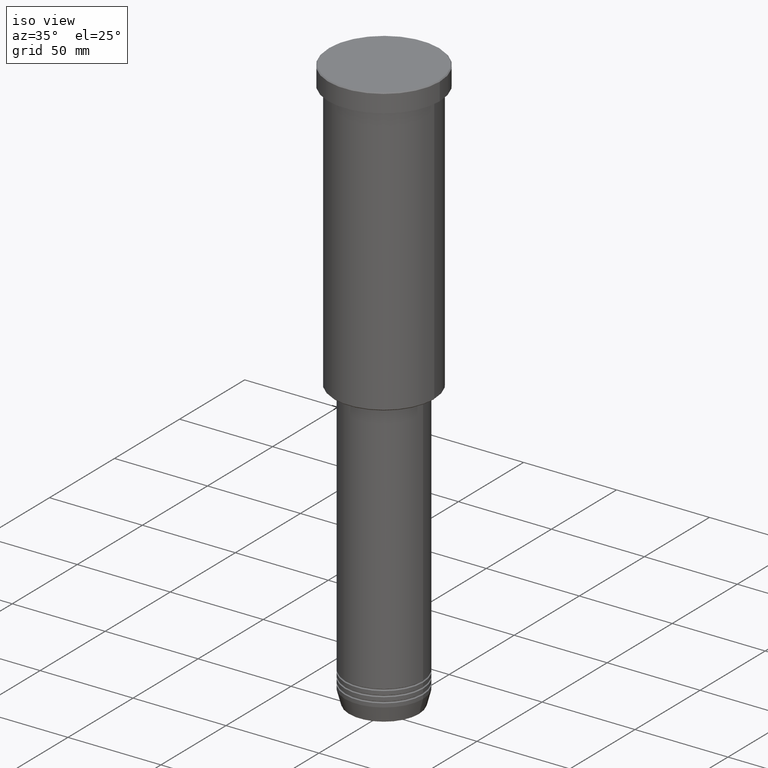
[diagram: clean part render]
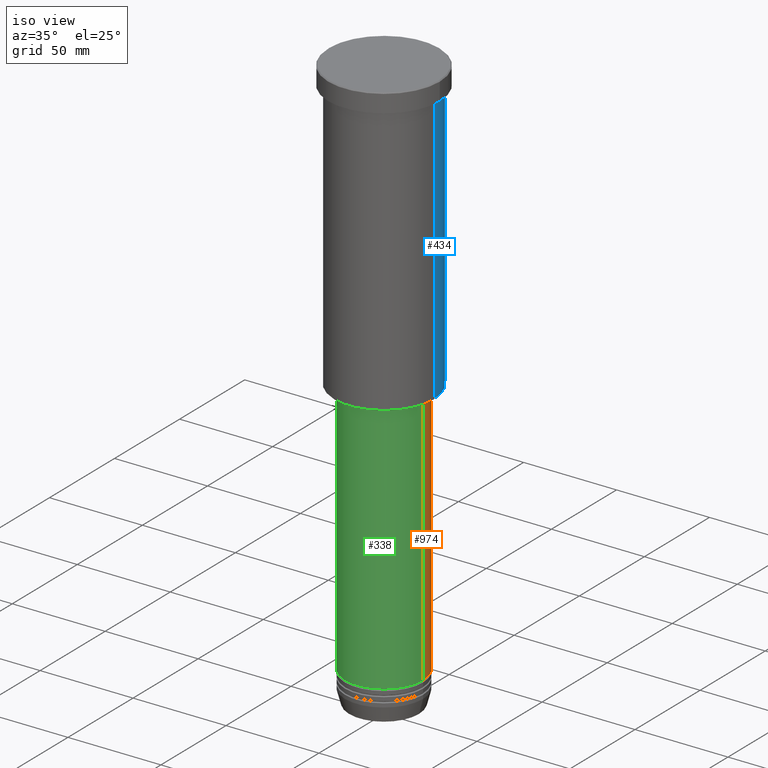
[diagram: same view with three faces highlighted in distinct colors, each labeled with its STEP entity id]
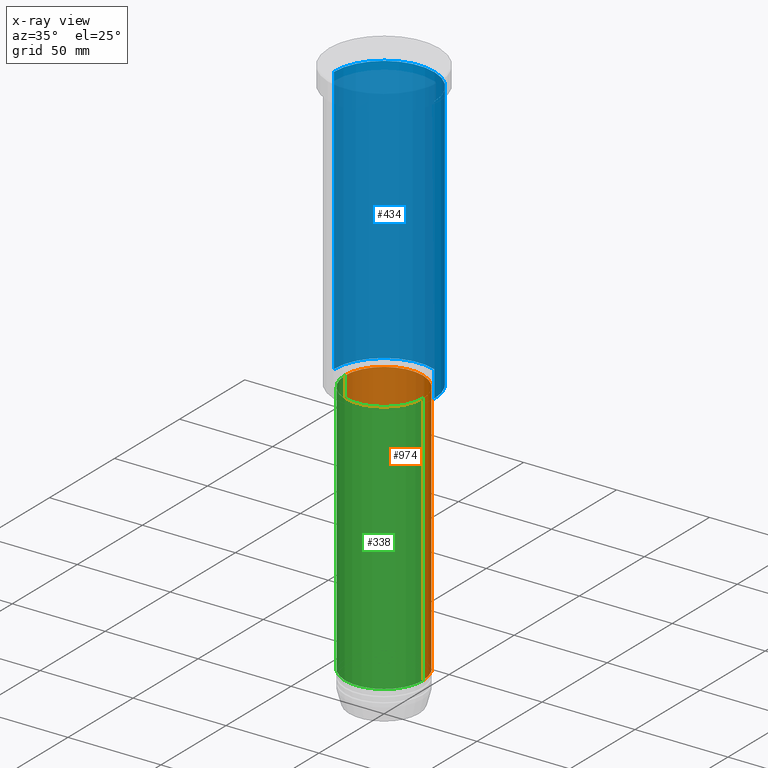
[diagram: x-ray of the same camera — body ghosted, the three highlighted faces saturated]
A machine part, iso view with three faces highlighted in distinct colors.
The next image is the same camera in x-ray (body ghosted, the three faces saturated) — at least one of them is partly hidden behind the body in this view.
Their STEP definitions:

[orange] entity #974 — the highlighted cylindrical surface (partial cylindrical patch) has radius 21 mm, axis along (-0, -0, 1).
#19 = VERTEX_POINT ( 'NONE', #55 ) ;
#34 = CYLINDRICAL_SURFACE ( 'NONE', #875, 21.00000000000000000 ) ;
#55 = CARTESIAN_POINT ( 'NONE',  ( 21.00000000000000000, 0.000000000000000000, -156.9999999999999147 ) ) ;
#90 = EDGE_LOOP ( 'NONE', ( #656, #624, #934, #271 ) ) ;
#97 = AXIS2_PLACEMENT_3D ( 'NONE', #742, #544, #457 ) ;
#106 = EDGE_CURVE ( 'NONE', #847, #19, #963, .T. ) ;
#120 = CARTESIAN_POINT ( 'NONE',  ( 0.000000000000000000, 0.000000000000000000, 0.000000000000000000 ) ) ;
#149 = DIRECTION ( 'NONE',  ( -0.000000000000000000, -0.000000000000000000, 1.000000000000000000 ) ) ;
#165 = CIRCLE ( 'NONE', #97, 21.00000000000000000 ) ;
#232 = CARTESIAN_POINT ( 'NONE',  ( -21.00000000000000000, 2.571758278209441661E-15, 0.000000000000000000 ) ) ;
#271 = ORIENTED_EDGE ( 'NONE', *, *, #106, .F. ) ;
#345 = AXIS2_PLACEMENT_3D ( 'NONE', #447, #804, #813 ) ;
#447 = CARTESIAN_POINT ( 'NONE',  ( 0.000000000000000000, 0.000000000000000000, -156.9999999999999147 ) ) ;
#457 = DIRECTION ( 'NONE',  ( 1.000000000000000000, 0.000000000000000000, 0.000000000000000000 ) ) ;
#463 = VECTOR ( 'NONE', #524, 1000.000000000000000 ) ;
#489 = VERTEX_POINT ( 'NONE', #1056 ) ;
#524 = DIRECTION ( 'NONE',  ( -0.000000000000000000, -0.000000000000000000, 1.000000000000000000 ) ) ;
#544 = DIRECTION ( 'NONE',  ( -0.000000000000000000, -0.000000000000000000, 1.000000000000000000 ) ) ;
#558 = EDGE_CURVE ( 'NONE', #1062, #489, #702, .T. ) ;
#588 = CIRCLE ( 'NONE', #345, 21.00000000000000000 ) ;
#624 = ORIENTED_EDGE ( 'NONE', *, *, #558, .T. ) ;
#651 = CARTESIAN_POINT ( 'NONE',  ( 21.00000000000000000, 0.000000000000000000, -294.0000000000000000 ) ) ;
#656 = ORIENTED_EDGE ( 'NONE', *, *, #880, .T. ) ;
#702 = LINE ( 'NONE', #232, #463 ) ;
#742 = CARTESIAN_POINT ( 'NONE',  ( 0.000000000000000000, 0.000000000000000000, -294.0000000000000000 ) ) ;
#804 = DIRECTION ( 'NONE',  ( -0.000000000000000000, -0.000000000000000000, 1.000000000000000000 ) ) ;
#813 = DIRECTION ( 'NONE',  ( 1.000000000000000000, 0.000000000000000000, 0.000000000000000000 ) ) ;
#822 = CARTESIAN_POINT ( 'NONE',  ( -21.00000000000000000, 2.571758278209441661E-15, -294.0000000000000000 ) ) ;
#847 = VERTEX_POINT ( 'NONE', #651 ) ;
#856 = FACE_OUTER_BOUND ( 'NONE', #90, .T. ) ;
#875 = AXIS2_PLACEMENT_3D ( 'NONE', #120, #1016, #1129 ) ;
#880 = EDGE_CURVE ( 'NONE', #847, #1062, #165, .T. ) ;
#934 = ORIENTED_EDGE ( 'NONE', *, *, #1063, .F. ) ;
#937 = VECTOR ( 'NONE', #149, 1000.000000000000000 ) ;
#963 = LINE ( 'NONE', #1168, #937 ) ;
#974 = ADVANCED_FACE ( 'NONE', ( #856 ), #34, .T. ) ;
#1016 = DIRECTION ( 'NONE',  ( -0.000000000000000000, -0.000000000000000000, 1.000000000000000000 ) ) ;
#1056 = CARTESIAN_POINT ( 'NONE',  ( -21.00000000000000000, 2.571758278209441661E-15, -156.9999999999999147 ) ) ;
#1062 = VERTEX_POINT ( 'NONE', #822 ) ;
#1063 = EDGE_CURVE ( 'NONE', #19, #489, #588, .T. ) ;
#1129 = DIRECTION ( 'NONE',  ( 1.000000000000000000, 0.000000000000000000, 0.000000000000000000 ) ) ;
#1168 = CARTESIAN_POINT ( 'NONE',  ( 21.00000000000000000, 0.000000000000000000, 0.000000000000000000 ) ) ;

[blue] entity #434 — the highlighted cylindrical surface (partial cylindrical patch) has radius 27 mm, axis along (-0, -0, 1).
#25 = AXIS2_PLACEMENT_3D ( 'NONE', #237, #898, #805 ) ;
#49 = LINE ( 'NONE', #690, #866 ) ;
#67 = EDGE_CURVE ( 'NONE', #727, #834, #89, .T. ) ;
#79 = ORIENTED_EDGE ( 'NONE', *, *, #789, .T. ) ;
#89 = CIRCLE ( 'NONE', #25, 27.00000000000000355 ) ;
#115 = VECTOR ( 'NONE', #671, 1000.000000000000000 ) ;
#139 = ORIENTED_EDGE ( 'NONE', *, *, #67, .F. ) ;
#217 = ORIENTED_EDGE ( 'NONE', *, *, #450, .F. ) ;
#237 = CARTESIAN_POINT ( 'NONE',  ( 0.000000000000000000, 0.000000000000000000, -10.99999999999999289 ) ) ;
#249 = DIRECTION ( 'NONE',  ( -1.000000000000000000, 0.000000000000000000, 0.000000000000000000 ) ) ;
#287 = AXIS2_PLACEMENT_3D ( 'NONE', #1157, #342, #249 ) ;
#315 = CARTESIAN_POINT ( 'NONE',  ( -27.00000000000000355, 3.306546357697854128E-15, -155.5000000000000000 ) ) ;
#326 = DIRECTION ( 'NONE',  ( -0.000000000000000000, -0.000000000000000000, 1.000000000000000000 ) ) ;
#335 = DIRECTION ( 'NONE',  ( 1.000000000000000000, 0.000000000000000000, 0.000000000000000000 ) ) ;
#342 = DIRECTION ( 'NONE',  ( -0.000000000000000000, -0.000000000000000000, 1.000000000000000000 ) ) ;
#361 = CARTESIAN_POINT ( 'NONE',  ( -27.00000000000000355, 3.306546357697854128E-15, -10.99999999999999289 ) ) ;
#395 = LINE ( 'NONE', #935, #115 ) ;
#410 = CARTESIAN_POINT ( 'NONE',  ( 0.000000000000000000, 0.000000000000000000, 0.000000000000000000 ) ) ;
#434 = ADVANCED_FACE ( 'NONE', ( #1164 ), #502, .T. ) ;
#450 = EDGE_CURVE ( 'NONE', #476, #727, #49, .T. ) ;
#476 = VERTEX_POINT ( 'NONE', #509 ) ;
#502 = CYLINDRICAL_SURFACE ( 'NONE', #922, 27.00000000000000355 ) ;
#509 = CARTESIAN_POINT ( 'NONE',  ( 27.00000000000000355, 0.000000000000000000, -155.5000000000000000 ) ) ;
#604 = ORIENTED_EDGE ( 'NONE', *, *, #905, .T. ) ;
#671 = DIRECTION ( 'NONE',  ( -0.000000000000000000, -0.000000000000000000, 1.000000000000000000 ) ) ;
#690 = CARTESIAN_POINT ( 'NONE',  ( 27.00000000000000355, 0.000000000000000000, 0.000000000000000000 ) ) ;
#727 = VERTEX_POINT ( 'NONE', #917 ) ;
#789 = EDGE_CURVE ( 'NONE', #476, #1054, #894, .T. ) ;
#805 = DIRECTION ( 'NONE',  ( 1.000000000000000000, 0.000000000000000000, 0.000000000000000000 ) ) ;
#834 = VERTEX_POINT ( 'NONE', #361 ) ;
#866 = VECTOR ( 'NONE', #948, 1000.000000000000000 ) ;
#894 = CIRCLE ( 'NONE', #287, 27.00000000000000355 ) ;
#898 = DIRECTION ( 'NONE',  ( -0.000000000000000000, -0.000000000000000000, 1.000000000000000000 ) ) ;
#905 = EDGE_CURVE ( 'NONE', #1054, #834, #395, .T. ) ;
#917 = CARTESIAN_POINT ( 'NONE',  ( 27.00000000000000355, 0.000000000000000000, -10.99999999999999289 ) ) ;
#922 = AXIS2_PLACEMENT_3D ( 'NONE', #410, #326, #335 ) ;
#926 = EDGE_LOOP ( 'NONE', ( #79, #604, #139, #217 ) ) ;
#935 = CARTESIAN_POINT ( 'NONE',  ( -27.00000000000000355, 3.306546357697854128E-15, 0.000000000000000000 ) ) ;
#948 = DIRECTION ( 'NONE',  ( -0.000000000000000000, -0.000000000000000000, 1.000000000000000000 ) ) ;
#1054 = VERTEX_POINT ( 'NONE', #315 ) ;
#1157 = CARTESIAN_POINT ( 'NONE',  ( 0.000000000000000000, 0.000000000000000000, -155.5000000000000000 ) ) ;
#1164 = FACE_OUTER_BOUND ( 'NONE', #926, .T. ) ;

[green] entity #338 — the highlighted cylindrical surface (partial cylindrical patch) has radius 21 mm, axis along (-0, -0, 1).
#5 = ORIENTED_EDGE ( 'NONE', *, *, #628, .F. ) ;
#19 = VERTEX_POINT ( 'NONE', #55 ) ;
#55 = CARTESIAN_POINT ( 'NONE',  ( 21.00000000000000000, 0.000000000000000000, -156.9999999999999147 ) ) ;
#106 = EDGE_CURVE ( 'NONE', #847, #19, #963, .T. ) ;
#117 = ORIENTED_EDGE ( 'NONE', *, *, #692, .T. ) ;
#123 = EDGE_LOOP ( 'NONE', ( #1077, #117, #630, #5 ) ) ;
#149 = DIRECTION ( 'NONE',  ( -0.000000000000000000, -0.000000000000000000, 1.000000000000000000 ) ) ;
#170 = DIRECTION ( 'NONE',  ( 1.000000000000000000, 0.000000000000000000, 0.000000000000000000 ) ) ;
#232 = CARTESIAN_POINT ( 'NONE',  ( -21.00000000000000000, 2.571758278209441661E-15, 0.000000000000000000 ) ) ;
#276 = CARTESIAN_POINT ( 'NONE',  ( 0.000000000000000000, 0.000000000000000000, -156.9999999999999147 ) ) ;
#338 = ADVANCED_FACE ( 'NONE', ( #999 ), #611, .T. ) ;
#463 = VECTOR ( 'NONE', #524, 1000.000000000000000 ) ;
#489 = VERTEX_POINT ( 'NONE', #1056 ) ;
#491 = AXIS2_PLACEMENT_3D ( 'NONE', #729, #528, #899 ) ;
#524 = DIRECTION ( 'NONE',  ( -0.000000000000000000, -0.000000000000000000, 1.000000000000000000 ) ) ;
#528 = DIRECTION ( 'NONE',  ( -0.000000000000000000, -0.000000000000000000, 1.000000000000000000 ) ) ;
#558 = EDGE_CURVE ( 'NONE', #1062, #489, #702, .T. ) ;
#611 = CYLINDRICAL_SURFACE ( 'NONE', #975, 21.00000000000000000 ) ;
#628 = EDGE_CURVE ( 'NONE', #489, #19, #673, .T. ) ;
#630 = ORIENTED_EDGE ( 'NONE', *, *, #106, .T. ) ;
#643 = DIRECTION ( 'NONE',  ( -0.000000000000000000, -0.000000000000000000, 1.000000000000000000 ) ) ;
#651 = CARTESIAN_POINT ( 'NONE',  ( 21.00000000000000000, 0.000000000000000000, -294.0000000000000000 ) ) ;
#673 = CIRCLE ( 'NONE', #1117, 21.00000000000000000 ) ;
#692 = EDGE_CURVE ( 'NONE', #1062, #847, #735, .T. ) ;
#702 = LINE ( 'NONE', #232, #463 ) ;
#729 = CARTESIAN_POINT ( 'NONE',  ( 0.000000000000000000, 0.000000000000000000, -294.0000000000000000 ) ) ;
#735 = CIRCLE ( 'NONE', #491, 21.00000000000000000 ) ;
#822 = CARTESIAN_POINT ( 'NONE',  ( -21.00000000000000000, 2.571758278209441661E-15, -294.0000000000000000 ) ) ;
#847 = VERTEX_POINT ( 'NONE', #651 ) ;
#899 = DIRECTION ( 'NONE',  ( 1.000000000000000000, 0.000000000000000000, 0.000000000000000000 ) ) ;
#909 = DIRECTION ( 'NONE',  ( -0.000000000000000000, -0.000000000000000000, 1.000000000000000000 ) ) ;
#937 = VECTOR ( 'NONE', #149, 1000.000000000000000 ) ;
#963 = LINE ( 'NONE', #1168, #937 ) ;
#975 = AXIS2_PLACEMENT_3D ( 'NONE', #1146, #909, #1048 ) ;
#999 = FACE_OUTER_BOUND ( 'NONE', #123, .T. ) ;
#1048 = DIRECTION ( 'NONE',  ( 1.000000000000000000, 0.000000000000000000, 0.000000000000000000 ) ) ;
#1056 = CARTESIAN_POINT ( 'NONE',  ( -21.00000000000000000, 2.571758278209441661E-15, -156.9999999999999147 ) ) ;
#1062 = VERTEX_POINT ( 'NONE', #822 ) ;
#1077 = ORIENTED_EDGE ( 'NONE', *, *, #558, .F. ) ;
#1117 = AXIS2_PLACEMENT_3D ( 'NONE', #276, #643, #170 ) ;
#1146 = CARTESIAN_POINT ( 'NONE',  ( 0.000000000000000000, 0.000000000000000000, 0.000000000000000000 ) ) ;
#1168 = CARTESIAN_POINT ( 'NONE',  ( 21.00000000000000000, 0.000000000000000000, 0.000000000000000000 ) ) ;